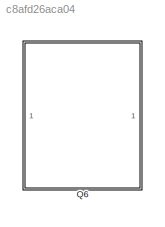
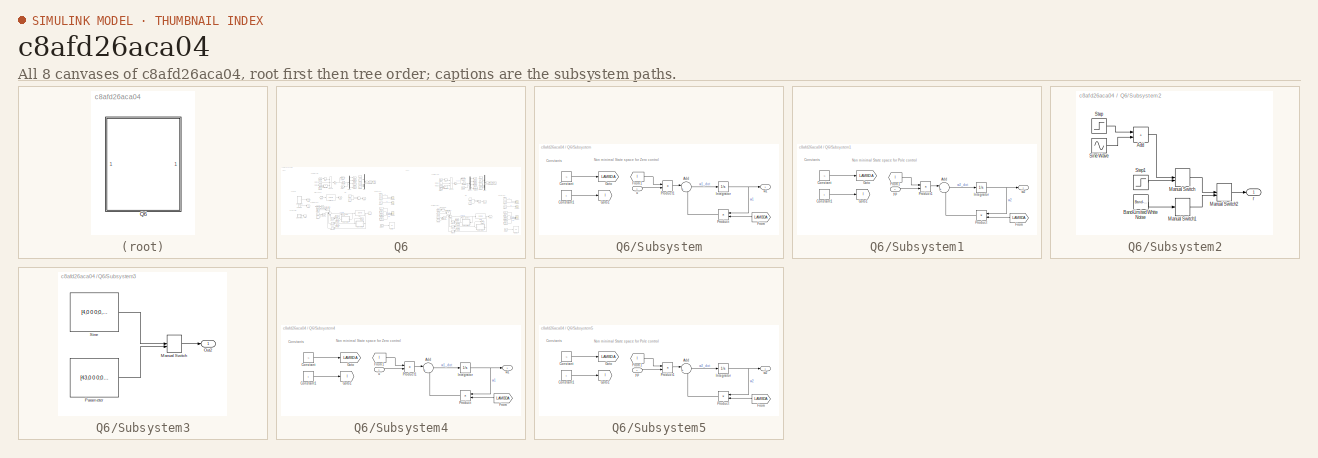
[diagram: thumbnail index - all 8 canvases of the model, root first then tree order]
MODEL slx_c8afd26aca04
KIND model
CONFIG AbsTol = auto
CONFIG EnableMultiTasking = off
CONFIG FixedStep = 0.0001
CONFIG MaxStep = auto
CONFIG MinStep = auto
CONFIG RelTol = 1e-3
CONFIG SampleTimeConstraint = Unconstrained
CONFIG SolverName = VariableStepAuto
CONFIG StartTime = 0.0
CONFIG StopTime = 20
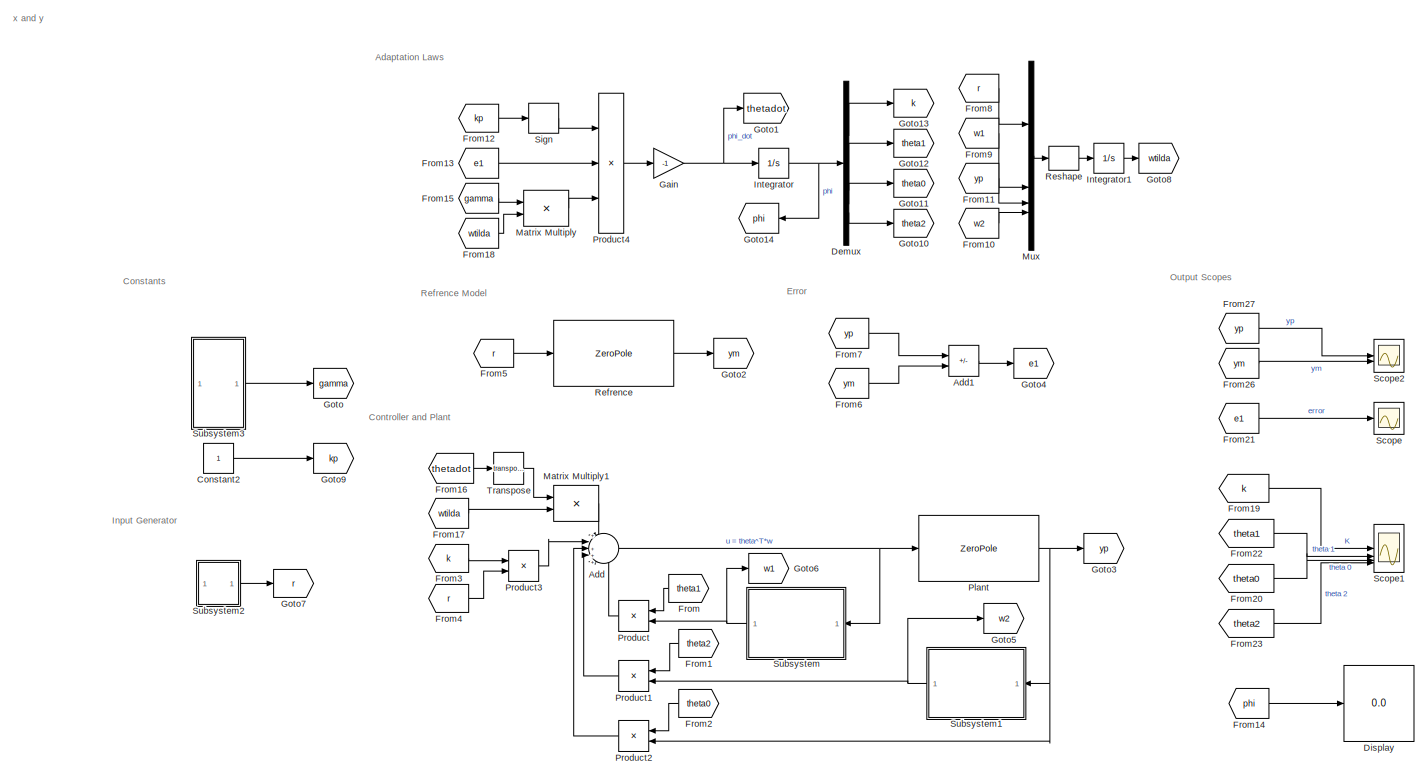
[diagram: Q6 - part 1/2, left side, full height]
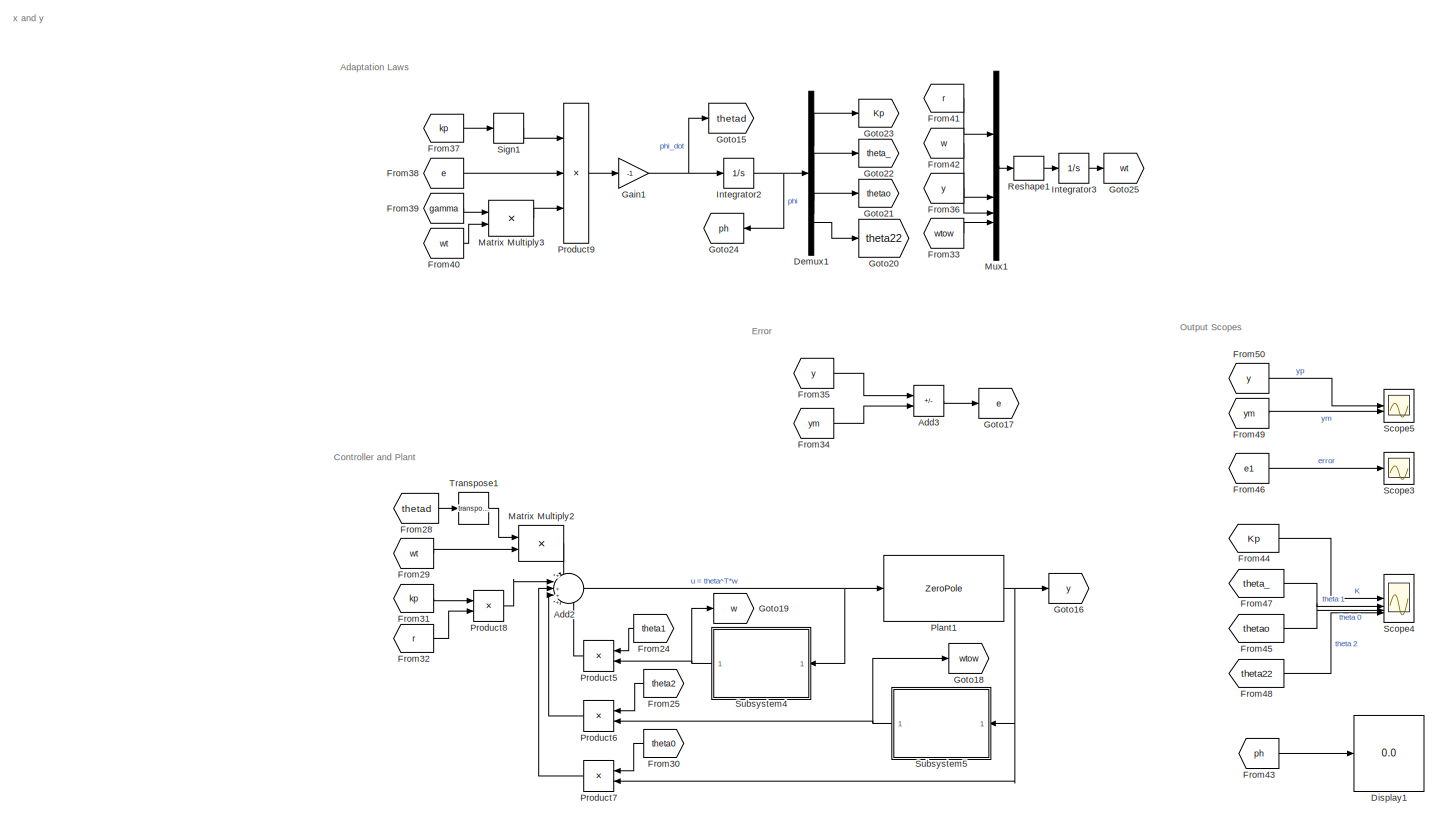
[diagram: Q6 - part 2/2, right side, full height]
BLOCK [SubSystem] Q6
BLOCK [Sum] Q6/Add
  Inputs = +|++++
BLOCK [Sum] Q6/Add1
  IconShape = rectangular
  Inputs = +-
BLOCK [Sum] Q6/Add2
  Inputs = +|++++
BLOCK [Sum] Q6/Add3
  IconShape = rectangular
  Inputs = +-
BLOCK [Constant] Q6/Constant2
BLOCK [Demux] Q6/Demux
BLOCK [Demux] Q6/Demux1
BLOCK [Display] Q6/Display
  Decimation = 1
BLOCK [Display] Q6/Display1
  Decimation = 1
BLOCK [From] Q6/From
  GotoTag = theta1
  NameLocation = top
BLOCK [From] Q6/From1
  GotoTag = theta2
  NameLocation = top
BLOCK [From] Q6/From10
  GotoTag = w2
BLOCK [From] Q6/From11
  GotoTag = yp
BLOCK [From] Q6/From12
  GotoTag = kp
BLOCK [From] Q6/From13
  GotoTag = e1
BLOCK [From] Q6/From14
  GotoTag = phi
  NameLocation = top
BLOCK [From] Q6/From15
  GotoTag = gamma
BLOCK [From] Q6/From16
  GotoTag = thetadot
BLOCK [From] Q6/From17
  GotoTag = wtilda
BLOCK [From] Q6/From18
  GotoTag = wtilda
BLOCK [From] Q6/From19
  GotoTag = k
BLOCK [From] Q6/From2
  GotoTag = theta0
  NameLocation = top
BLOCK [From] Q6/From20
  GotoTag = theta0
BLOCK [From] Q6/From21
  GotoTag = e1
BLOCK [From] Q6/From22
  GotoTag = theta1
BLOCK [From] Q6/From23
  GotoTag = theta2
BLOCK [From] Q6/From24
  GotoTag = theta1
  NameLocation = top
BLOCK [From] Q6/From25
  GotoTag = theta2
  NameLocation = top
BLOCK [From] Q6/From26
  GotoTag = ym
BLOCK [From] Q6/From27
  GotoTag = yp
BLOCK [From] Q6/From28
  GotoTag = thetad
BLOCK [From] Q6/From29
  GotoTag = wt
BLOCK [From] Q6/From3
  GotoTag = k
BLOCK [From] Q6/From30
  GotoTag = theta0
  NameLocation = top
BLOCK [From] Q6/From31
  GotoTag = kp
BLOCK [From] Q6/From32
  GotoTag = r
BLOCK [From] Q6/From33
  GotoTag = wtow
BLOCK [From] Q6/From34
  GotoTag = ym
BLOCK [From] Q6/From35
  GotoTag = y
BLOCK [From] Q6/From36
  GotoTag = y
BLOCK [From] Q6/From37
  GotoTag = kp
BLOCK [From] Q6/From38
  GotoTag = e
BLOCK [From] Q6/From39
  GotoTag = gamma
BLOCK [From] Q6/From4
  GotoTag = r
BLOCK [From] Q6/From40
  GotoTag = wt
BLOCK [From] Q6/From41
  GotoTag = r
BLOCK [From] Q6/From42
  GotoTag = w
BLOCK [From] Q6/From43
  GotoTag = ph
  NameLocation = top
BLOCK [From] Q6/From44
  GotoTag = Kp
BLOCK [From] Q6/From45
  GotoTag = thetao
BLOCK [From] Q6/From46
  GotoTag = e1
BLOCK [From] Q6/From47
  GotoTag = theta_
BLOCK [From] Q6/From48
  GotoTag = theta22
BLOCK [From] Q6/From49
  GotoTag = ym
BLOCK [From] Q6/From5
  GotoTag = r
BLOCK [From] Q6/From50
  GotoTag = y
BLOCK [From] Q6/From6
  GotoTag = ym
BLOCK [From] Q6/From7
  GotoTag = yp
BLOCK [From] Q6/From8
  GotoTag = r
BLOCK [From] Q6/From9
  GotoTag = w1
BLOCK [Gain] Q6/Gain
  Gain = -1
BLOCK [Gain] Q6/Gain1
  Gain = -1
BLOCK [Goto] Q6/Goto
  GotoTag = gamma
BLOCK [Goto] Q6/Goto1
  GotoTag = thetadot
BLOCK [Goto] Q6/Goto10
  GotoTag = theta2
  NameLocation = top
BLOCK [Goto] Q6/Goto11
  GotoTag = theta0
  NameLocation = top
BLOCK [Goto] Q6/Goto12
  GotoTag = theta1
  NameLocation = top
BLOCK [Goto] Q6/Goto13
  GotoTag = k
BLOCK [Goto] Q6/Goto14
  GotoTag = phi
  NameLocation = top
BLOCK [Goto] Q6/Goto15
  GotoTag = thetad
BLOCK [Goto] Q6/Goto16
  GotoTag = y
BLOCK [Goto] Q6/Goto17
  GotoTag = e
BLOCK [Goto] Q6/Goto18
  GotoTag = wtow
BLOCK [Goto] Q6/Goto19
  GotoTag = w
BLOCK [Goto] Q6/Goto2
  GotoTag = ym
BLOCK [Goto] Q6/Goto20
  GotoTag = theta22
  NameLocation = top
BLOCK [Goto] Q6/Goto21
  GotoTag = thetao
  NameLocation = top
BLOCK [Goto] Q6/Goto22
  GotoTag = theta_
  NameLocation = top
BLOCK [Goto] Q6/Goto23
  GotoTag = Kp
BLOCK [Goto] Q6/Goto24
  GotoTag = ph
  NameLocation = top
BLOCK [Goto] Q6/Goto25
  GotoTag = wt
BLOCK [Goto] Q6/Goto3
  GotoTag = yp
BLOCK [Goto] Q6/Goto4
  GotoTag = e1
BLOCK [Goto] Q6/Goto5
  GotoTag = w2
BLOCK [Goto] Q6/Goto6
  GotoTag = w1
BLOCK [Goto] Q6/Goto7
  GotoTag = r
BLOCK [Goto] Q6/Goto8
  GotoTag = wtilda
BLOCK [Goto] Q6/Goto9
  GotoTag = kp
BLOCK [Integrator] Q6/Integrator
BLOCK [Integrator] Q6/Integrator1
BLOCK [Integrator] Q6/Integrator2
BLOCK [Integrator] Q6/Integrator3
BLOCK [Product] Q6/Matrix Multiply
  Multiplication = Matrix(*)
BLOCK [Product] Q6/Matrix Multiply1
  Multiplication = Matrix(*)
BLOCK [Product] Q6/Matrix Multiply2
  Multiplication = Matrix(*)
BLOCK [Product] Q6/Matrix Multiply3
  Multiplication = Matrix(*)
BLOCK [Mux] Q6/Mux
  DisplayOption = bar
BLOCK [Mux] Q6/Mux1
  DisplayOption = bar
BLOCK [ZeroPole] Q6/Plant
  Gain = 1/2.5
  Poles = [0 0]
  Zeros = []
BLOCK [ZeroPole] Q6/Plant1
  Gain = 1/0.03
  Poles = [0 0]
  Zeros = []
BLOCK [Product] Q6/Product
  NameLocation = top
BLOCK [Product] Q6/Product1
  NameLocation = top
BLOCK [Product] Q6/Product2
  NameLocation = top
BLOCK [Product] Q6/Product3
BLOCK [Product] Q6/Product4
  Inputs = 3
BLOCK [Product] Q6/Product5
  NameLocation = top
BLOCK [Product] Q6/Product6
  NameLocation = top
BLOCK [Product] Q6/Product7
  NameLocation = top
BLOCK [Product] Q6/Product8
BLOCK [Product] Q6/Product9
  Inputs = 3
BLOCK [ZeroPole] Q6/Refrence
  Gain = 1
  Poles = [-1 -1]
  Zeros = []
BLOCK [Reshape] Q6/Reshape
  OutputDimensionality = Column vector (2-D)
BLOCK [Reshape] Q6/Reshape1
  OutputDimensionality = Column vector (2-D)
BLOCK [Scope] Q6/Scope
  Floating = off
  NumInputPorts = 1
  ScopeSpecificationString = Simulink.scopes.TimeScopeBlockCfg('CurrentConfiguration', extmgr.ConfigurationSet(extmgr.Configuration('Core','General UI',true,'FigureColor',[1 1 1]),extmgr.Configuration('Core','Source UI',true),extmgr.Configuration('Sources','WiredSimulink',true,'DataLoggingVariableName','ScopeData1'),extmgr.Configuration('Visuals','Time Domain',true,'SerializedDisplays',{struct('MinYLimReal','-0.35168','MaxYLi...<+2240ch>
BLOCK [Scope] Q6/Scope1
  Floating = off
  NumInputPorts = 4
  ScopeSpecificationString = Simulink.scopes.TimeScopeBlockCfg('CurrentConfiguration', extmgr.ConfigurationSet(extmgr.Configuration('Core','General UI',true,'FigureColor',[1 1 1]),extmgr.Configuration('Core','Source UI',true),extmgr.Configuration('Sources','WiredSimulink',true,'DataLoggingVariableName','ScopeData2'),extmgr.Configuration('Visuals','Time Domain',true,'SerializedDisplays',{struct('MinYLimReal','-0.15329','MaxYLi...<+4976ch>
BLOCK [Scope] Q6/Scope2
  Floating = off
  NumInputPorts = 2
  ScopeSpecificationString = Simulink.scopes.TimeScopeBlockCfg('CurrentConfiguration', extmgr.ConfigurationSet(extmgr.Configuration('Core','General UI',true,'FigureColor',[1 1 1]),extmgr.Configuration('Core','Source UI',true),extmgr.Configuration('Sources','WiredSimulink',true,'DataLoggingVariableName','ScopeData3'),extmgr.Configuration('Visuals','Time Domain',true,'SerializedDisplays',{struct('MinYLimReal','-0.125','MaxYLimR...<+2193ch>
BLOCK [Scope] Q6/Scope3
  Floating = off
  NumInputPorts = 1
  ScopeSpecificationString = Simulink.scopes.TimeScopeBlockCfg('CurrentConfiguration', extmgr.ConfigurationSet(extmgr.Configuration('Core','General UI',true,'FigureColor',[1 1 1]),extmgr.Configuration('Core','Source UI',true),extmgr.Configuration('Sources','WiredSimulink',true,'DataLoggingVariableName','ScopeData1'),extmgr.Configuration('Visuals','Time Domain',true,'SerializedDisplays',{struct('MinYLimReal','-0.35168','MaxYLi...<+2267ch>
BLOCK [Scope] Q6/Scope4
  Floating = off
  NumInputPorts = 4
  ScopeSpecificationString = Simulink.scopes.TimeScopeBlockCfg('CurrentConfiguration', extmgr.ConfigurationSet(extmgr.Configuration('Core','General UI',true,'FigureColor',[1 1 1]),extmgr.Configuration('Core','Source UI',true),extmgr.Configuration('Sources','WiredSimulink',true,'DataLoggingVariableName','ScopeData2'),extmgr.Configuration('Visuals','Time Domain',true,'SerializedDisplays',{struct('MinYLimReal','-0.15282','MaxYLi...<+4977ch>
BLOCK [Scope] Q6/Scope5
  Floating = off
  NumInputPorts = 2
  ScopeSpecificationString = Simulink.scopes.TimeScopeBlockCfg('CurrentConfiguration', extmgr.ConfigurationSet(extmgr.Configuration('Core','General UI',true,'FigureColor',[1 1 1]),extmgr.Configuration('Core','Source UI',true),extmgr.Configuration('Sources','WiredSimulink',true,'DataLoggingVariableName','ScopeData3'),extmgr.Configuration('Visuals','Time Domain',true,'SerializedDisplays',{struct('MinYLimReal','-2.21499','MaxYLi...<+2208ch>
BLOCK [Signum] Q6/Sign
BLOCK [Signum] Q6/Sign1
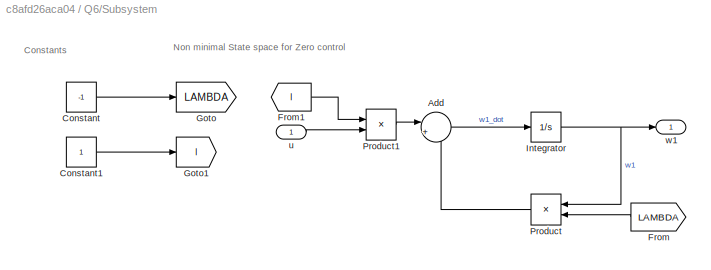
BLOCK [SubSystem] Q6/Subsystem
  NameLocation = top
BLOCK [Sum] Q6/Subsystem/Add
  Inputs = |++
BLOCK [Constant] Q6/Subsystem/Constant
  Value = -1
BLOCK [Constant] Q6/Subsystem/Constant1
BLOCK [From] Q6/Subsystem/From
  GotoTag = LAMBDA
  NameLocation = top
BLOCK [From] Q6/Subsystem/From1
  GotoTag = l
BLOCK [Goto] Q6/Subsystem/Goto
  GotoTag = LAMBDA
BLOCK [Goto] Q6/Subsystem/Goto1
  GotoTag = l
BLOCK [Integrator] Q6/Subsystem/Integrator
BLOCK [Product] Q6/Subsystem/Product
  NameLocation = top
BLOCK [Product] Q6/Subsystem/Product1
BLOCK [Inport] Q6/Subsystem/u
BLOCK [Outport] Q6/Subsystem/w1
BLOCK [SubSystem] Q6/Subsystem1
  NameLocation = top
BLOCK [Sum] Q6/Subsystem1/Add
  Inputs = |++
BLOCK [Constant] Q6/Subsystem1/Constant
  Value = -1
BLOCK [Constant] Q6/Subsystem1/Constant1
BLOCK [From] Q6/Subsystem1/From
  GotoTag = LAMBDA
  NameLocation = top
BLOCK [From] Q6/Subsystem1/From1
  GotoTag = l
BLOCK [Goto] Q6/Subsystem1/Goto
  GotoTag = LAMBDA
BLOCK [Goto] Q6/Subsystem1/Goto1
  GotoTag = l
BLOCK [Integrator] Q6/Subsystem1/Integrator
BLOCK [Product] Q6/Subsystem1/Product
  NameLocation = top
BLOCK [Product] Q6/Subsystem1/Product1
BLOCK [Outport] Q6/Subsystem1/w2
BLOCK [Inport] Q6/Subsystem1/yp
BLOCK [SubSystem] Q6/Subsystem2
BLOCK [Sum] Q6/Subsystem2/Add
  IconShape = rectangular
BLOCK [Reference] Q6/Subsystem2/Band-Limited White Noise  REF=simulink/Sources/Band-Limited
White Noise
  SourceBlock = simulink/Sources/Band-Limited\nWhite Noise
  SourceType = Band-Limited White Noise.
BLOCK [ManualSwitch] Q6/Subsystem2/Manual Switch
  CurrentSetting = 0
BLOCK [ManualSwitch] Q6/Subsystem2/Manual Switch1
BLOCK [ManualSwitch] Q6/Subsystem2/Manual Switch2
BLOCK [Sin] Q6/Subsystem2/Sine Wave
  SampleTime = 0
BLOCK [Step] Q6/Subsystem2/Step
  SampleTime = 0
  Time = 0
BLOCK [Step] Q6/Subsystem2/Step1
  SampleTime = 0
BLOCK [Outport] Q6/Subsystem2/r
BLOCK [SubSystem] Q6/Subsystem3
BLOCK [ManualSwitch] Q6/Subsystem3/Manual Switch
BLOCK [Outport] Q6/Subsystem3/Out2
BLOCK [Constant] Q6/Subsystem3/Parameter
  Value = [43,0 0 0;0,34,0,0;0,0,45,0;0,0,0,13]
BLOCK [Constant] Q6/Subsystem3/Sine
  Value = [4,0 0 0;0,95,0,0;0,0,20,0;0,0,0,7]
BLOCK [SubSystem] Q6/Subsystem4
  NameLocation = top
BLOCK [Sum] Q6/Subsystem4/Add
  Inputs = |++
BLOCK [Constant] Q6/Subsystem4/Constant
  Value = -1
BLOCK [Constant] Q6/Subsystem4/Constant1
BLOCK [From] Q6/Subsystem4/From
  GotoTag = LAMBDA
  NameLocation = top
BLOCK [From] Q6/Subsystem4/From1
  GotoTag = l
BLOCK [Goto] Q6/Subsystem4/Goto
  GotoTag = LAMBDA
BLOCK [Goto] Q6/Subsystem4/Goto1
  GotoTag = l
BLOCK [Integrator] Q6/Subsystem4/Integrator
BLOCK [Product] Q6/Subsystem4/Product
  NameLocation = top
BLOCK [Product] Q6/Subsystem4/Product1
BLOCK [Inport] Q6/Subsystem4/u
BLOCK [Outport] Q6/Subsystem4/w1
BLOCK [SubSystem] Q6/Subsystem5
  NameLocation = top
BLOCK [Sum] Q6/Subsystem5/Add
  Inputs = |++
BLOCK [Constant] Q6/Subsystem5/Constant
  Value = -1
BLOCK [Constant] Q6/Subsystem5/Constant1
BLOCK [From] Q6/Subsystem5/From
  GotoTag = LAMBDA
  NameLocation = top
BLOCK [From] Q6/Subsystem5/From1
  GotoTag = l
BLOCK [Goto] Q6/Subsystem5/Goto
  GotoTag = LAMBDA
BLOCK [Goto] Q6/Subsystem5/Goto1
  GotoTag = l
BLOCK [Integrator] Q6/Subsystem5/Integrator
BLOCK [Product] Q6/Subsystem5/Product
  NameLocation = top
BLOCK [Product] Q6/Subsystem5/Product1
BLOCK [Outport] Q6/Subsystem5/w2
BLOCK [Inport] Q6/Subsystem5/yp
BLOCK [Math] Q6/Transpose
  Operator = transpose
BLOCK [Math] Q6/Transpose1
  Operator = transpose
ANNOTATION Q6: Adaptation Laws
ANNOTATION Q6: Constants
ANNOTATION Q6: Controller and Plant
ANNOTATION Q6: Error
ANNOTATION Q6: Input Generator
ANNOTATION Q6: Output Scopes
ANNOTATION Q6: Refrence Model
ANNOTATION Q6: x and y
ANNOTATION Q6/Subsystem: Constants
ANNOTATION Q6/Subsystem: Non minimal State space for Zero control
ANNOTATION Q6/Subsystem1: Constants
ANNOTATION Q6/Subsystem1: Non minimal State space for Pole control
ANNOTATION Q6/Subsystem4: Constants
ANNOTATION Q6/Subsystem4: Non minimal State space for Zero control
ANNOTATION Q6/Subsystem5: Constants
ANNOTATION Q6/Subsystem5: Non minimal State space for Pole control
LINE Q6/Add1:1 -> Q6/Goto4:1
NET Q6/Add2:1 -> Q6/Plant1:1, Q6/Subsystem4:1
LINE Q6/Add3:1 -> Q6/Goto17:1
NET Q6/Add:1 -> Q6/Plant:1, Q6/Subsystem:1
LINE Q6/Constant2:1 -> Q6/Goto9:1
LINE Q6/Demux1:1 -> Q6/Goto23:1
LINE Q6/Demux1:2 -> Q6/Goto22:1
LINE Q6/Demux1:3 -> Q6/Goto21:1
LINE Q6/Demux1:4 -> Q6/Goto20:1
LINE Q6/Demux:1 -> Q6/Goto13:1
LINE Q6/Demux:2 -> Q6/Goto12:1
LINE Q6/Demux:3 -> Q6/Goto11:1
LINE Q6/Demux:4 -> Q6/Goto10:1
LINE Q6/From10:1 -> Q6/Mux:4
LINE Q6/From11:1 -> Q6/Mux:3
LINE Q6/From12:1 -> Q6/Sign:1
LINE Q6/From13:1 -> Q6/Product4:2
LINE Q6/From14:1 -> Q6/Display:1
LINE Q6/From15:1 -> Q6/Matrix Multiply:1
LINE Q6/From16:1 -> Q6/Transpose:1
LINE Q6/From17:1 -> Q6/Matrix Multiply1:2
LINE Q6/From18:1 -> Q6/Matrix Multiply:2
LINE Q6/From19:1 -> Q6/Scope1:1
LINE Q6/From1:1 -> Q6/Product1:1
LINE Q6/From20:1 -> Q6/Scope1:3
LINE Q6/From21:1 -> Q6/Scope:1
LINE Q6/From22:1 -> Q6/Scope1:2
LINE Q6/From23:1 -> Q6/Scope1:4
LINE Q6/From24:1 -> Q6/Product5:1
LINE Q6/From25:1 -> Q6/Product6:1
LINE Q6/From26:1 -> Q6/Scope2:2
LINE Q6/From27:1 -> Q6/Scope2:1
LINE Q6/From28:1 -> Q6/Transpose1:1
LINE Q6/From29:1 -> Q6/Matrix Multiply2:2
LINE Q6/From2:1 -> Q6/Product2:1
LINE Q6/From30:1 -> Q6/Product7:1
LINE Q6/From31:1 -> Q6/Product8:1
LINE Q6/From32:1 -> Q6/Product8:2
LINE Q6/From33:1 -> Q6/Mux1:4
LINE Q6/From34:1 -> Q6/Add3:2
LINE Q6/From35:1 -> Q6/Add3:1
LINE Q6/From36:1 -> Q6/Mux1:3
LINE Q6/From37:1 -> Q6/Sign1:1
LINE Q6/From38:1 -> Q6/Product9:2
LINE Q6/From39:1 -> Q6/Matrix Multiply3:1
LINE Q6/From3:1 -> Q6/Product3:1
LINE Q6/From40:1 -> Q6/Matrix Multiply3:2
LINE Q6/From41:1 -> Q6/Mux1:1
LINE Q6/From42:1 -> Q6/Mux1:2
LINE Q6/From43:1 -> Q6/Display1:1
LINE Q6/From44:1 -> Q6/Scope4:1
LINE Q6/From45:1 -> Q6/Scope4:3
LINE Q6/From46:1 -> Q6/Scope3:1
LINE Q6/From47:1 -> Q6/Scope4:2
LINE Q6/From48:1 -> Q6/Scope4:4
LINE Q6/From49:1 -> Q6/Scope5:2
LINE Q6/From4:1 -> Q6/Product3:2
LINE Q6/From50:1 -> Q6/Scope5:1
LINE Q6/From5:1 -> Q6/Refrence:1
LINE Q6/From6:1 -> Q6/Add1:2
LINE Q6/From7:1 -> Q6/Add1:1
LINE Q6/From8:1 -> Q6/Mux:1
LINE Q6/From9:1 -> Q6/Mux:2
LINE Q6/From:1 -> Q6/Product:1
NET Q6/Gain1:1 -> Q6/Goto15:1, Q6/Integrator2:1
NET Q6/Gain:1 -> Q6/Goto1:1, Q6/Integrator:1
LINE Q6/Integrator1:1 -> Q6/Goto8:1
NET Q6/Integrator2:1 -> Q6/Demux1:1, Q6/Goto24:1
LINE Q6/Integrator3:1 -> Q6/Goto25:1
NET Q6/Integrator:1 -> Q6/Demux:1, Q6/Goto14:1
LINE Q6/Matrix Multiply1:1 -> Q6/Add:1
LINE Q6/Matrix Multiply2:1 -> Q6/Add2:1
LINE Q6/Matrix Multiply3:1 -> Q6/Product9:3
LINE Q6/Matrix Multiply:1 -> Q6/Product4:3
LINE Q6/Mux1:1 -> Q6/Reshape1:1
LINE Q6/Mux:1 -> Q6/Reshape:1
NET Q6/Plant1:1 -> Q6/Goto16:1, Q6/Product7:2, Q6/Subsystem5:1
NET Q6/Plant:1 -> Q6/Goto3:1, Q6/Product2:2, Q6/Subsystem1:1
LINE Q6/Product1:1 -> Q6/Add:4
LINE Q6/Product2:1 -> Q6/Add:3
LINE Q6/Product3:1 -> Q6/Add:2
LINE Q6/Product4:1 -> Q6/Gain:1
LINE Q6/Product5:1 -> Q6/Add2:5
LINE Q6/Product6:1 -> Q6/Add2:4
LINE Q6/Product7:1 -> Q6/Add2:3
LINE Q6/Product8:1 -> Q6/Add2:2
LINE Q6/Product9:1 -> Q6/Gain1:1
LINE Q6/Product:1 -> Q6/Add:5
LINE Q6/Refrence:1 -> Q6/Goto2:1
LINE Q6/Reshape1:1 -> Q6/Integrator3:1
LINE Q6/Reshape:1 -> Q6/Integrator1:1
LINE Q6/Sign1:1 -> Q6/Product9:1
LINE Q6/Sign:1 -> Q6/Product4:1
LINE Q6/Subsystem/Add:1 -> Q6/Subsystem/Integrator:1
LINE Q6/Subsystem/Constant1:1 -> Q6/Subsystem/Goto1:1
LINE Q6/Subsystem/Constant:1 -> Q6/Subsystem/Goto:1
LINE Q6/Subsystem/From1:1 -> Q6/Subsystem/Product1:1
LINE Q6/Subsystem/From:1 -> Q6/Subsystem/Product:2
NET Q6/Subsystem/Integrator:1 -> Q6/Subsystem/Product:1, Q6/Subsystem/w1:1
LINE Q6/Subsystem/Product1:1 -> Q6/Subsystem/Add:1
LINE Q6/Subsystem/Product:1 -> Q6/Subsystem/Add:2
LINE Q6/Subsystem/u:1 -> Q6/Subsystem/Product1:2
LINE Q6/Subsystem1/Add:1 -> Q6/Subsystem1/Integrator:1
LINE Q6/Subsystem1/Constant1:1 -> Q6/Subsystem1/Goto1:1
LINE Q6/Subsystem1/Constant:1 -> Q6/Subsystem1/Goto:1
LINE Q6/Subsystem1/From1:1 -> Q6/Subsystem1/Product1:1
LINE Q6/Subsystem1/From:1 -> Q6/Subsystem1/Product:2
NET Q6/Subsystem1/Integrator:1 -> Q6/Subsystem1/Product:1, Q6/Subsystem1/w2:1
LINE Q6/Subsystem1/Product1:1 -> Q6/Subsystem1/Add:1
LINE Q6/Subsystem1/Product:1 -> Q6/Subsystem1/Add:2
LINE Q6/Subsystem1/yp:1 -> Q6/Subsystem1/Product1:2
NET Q6/Subsystem1:1 -> Q6/Goto5:1, Q6/Product1:2
LINE Q6/Subsystem2/Add:1 -> Q6/Subsystem2/Manual Switch:1
LINE Q6/Subsystem2/Band-Limited White Noise:1 -> Q6/Subsystem2/Manual Switch1:1
LINE Q6/Subsystem2/Manual Switch1:1 -> Q6/Subsystem2/Manual Switch2:2
LINE Q6/Subsystem2/Manual Switch2:1 -> Q6/Subsystem2/r:1
LINE Q6/Subsystem2/Manual Switch:1 -> Q6/Subsystem2/Manual Switch2:1
LINE Q6/Subsystem2/Sine Wave:1 -> Q6/Subsystem2/Add:2
LINE Q6/Subsystem2/Step1:1 -> Q6/Subsystem2/Manual Switch:2
LINE Q6/Subsystem2/Step:1 -> Q6/Subsystem2/Add:1
LINE Q6/Subsystem2:1 -> Q6/Goto7:1
LINE Q6/Subsystem3/Manual Switch:1 -> Q6/Subsystem3/Out2:1
LINE Q6/Subsystem3/Parameter:1 -> Q6/Subsystem3/Manual Switch:2
LINE Q6/Subsystem3/Sine:1 -> Q6/Subsystem3/Manual Switch:1
LINE Q6/Subsystem3:1 -> Q6/Goto:1
LINE Q6/Subsystem4/Add:1 -> Q6/Subsystem4/Integrator:1
LINE Q6/Subsystem4/Constant1:1 -> Q6/Subsystem4/Goto1:1
LINE Q6/Subsystem4/Constant:1 -> Q6/Subsystem4/Goto:1
LINE Q6/Subsystem4/From1:1 -> Q6/Subsystem4/Product1:1
LINE Q6/Subsystem4/From:1 -> Q6/Subsystem4/Product:2
NET Q6/Subsystem4/Integrator:1 -> Q6/Subsystem4/Product:1, Q6/Subsystem4/w1:1
LINE Q6/Subsystem4/Product1:1 -> Q6/Subsystem4/Add:1
LINE Q6/Subsystem4/Product:1 -> Q6/Subsystem4/Add:2
LINE Q6/Subsystem4/u:1 -> Q6/Subsystem4/Product1:2
NET Q6/Subsystem4:1 -> Q6/Goto19:1, Q6/Product5:2
LINE Q6/Subsystem5/Add:1 -> Q6/Subsystem5/Integrator:1
LINE Q6/Subsystem5/Constant1:1 -> Q6/Subsystem5/Goto1:1
LINE Q6/Subsystem5/Constant:1 -> Q6/Subsystem5/Goto:1
LINE Q6/Subsystem5/From1:1 -> Q6/Subsystem5/Product1:1
LINE Q6/Subsystem5/From:1 -> Q6/Subsystem5/Product:2
NET Q6/Subsystem5/Integrator:1 -> Q6/Subsystem5/Product:1, Q6/Subsystem5/w2:1
LINE Q6/Subsystem5/Product1:1 -> Q6/Subsystem5/Add:1
LINE Q6/Subsystem5/Product:1 -> Q6/Subsystem5/Add:2
LINE Q6/Subsystem5/yp:1 -> Q6/Subsystem5/Product1:2
NET Q6/Subsystem5:1 -> Q6/Goto18:1, Q6/Product6:2
NET Q6/Subsystem:1 -> Q6/Goto6:1, Q6/Product:2
LINE Q6/Transpose1:1 -> Q6/Matrix Multiply2:1
LINE Q6/Transpose:1 -> Q6/Matrix Multiply1:1
note: NET lines group one-source signal fan-out (src -> all destinations, sorted); 1:1 wires keep LINE
